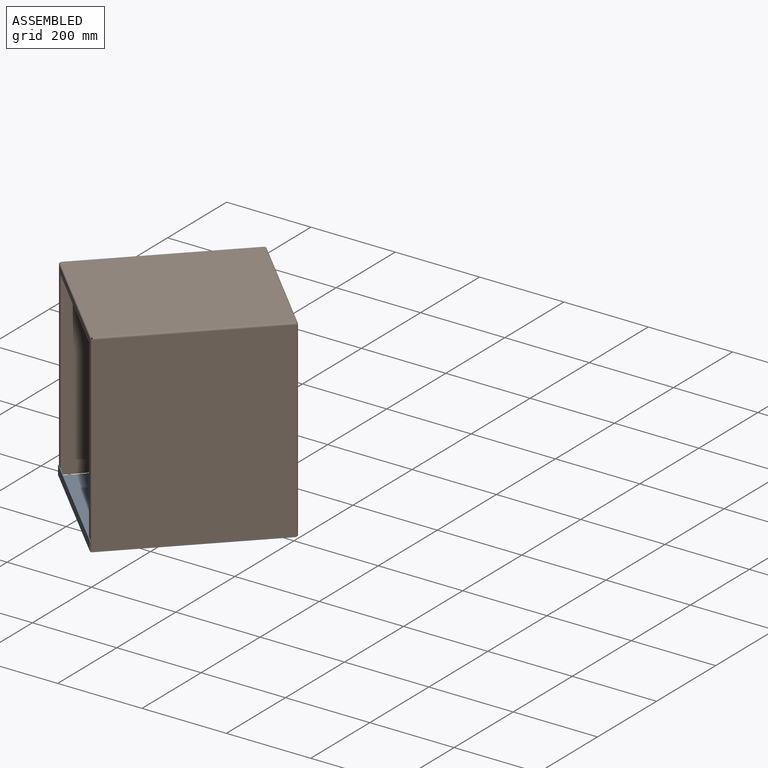
[diagram: assembled view]
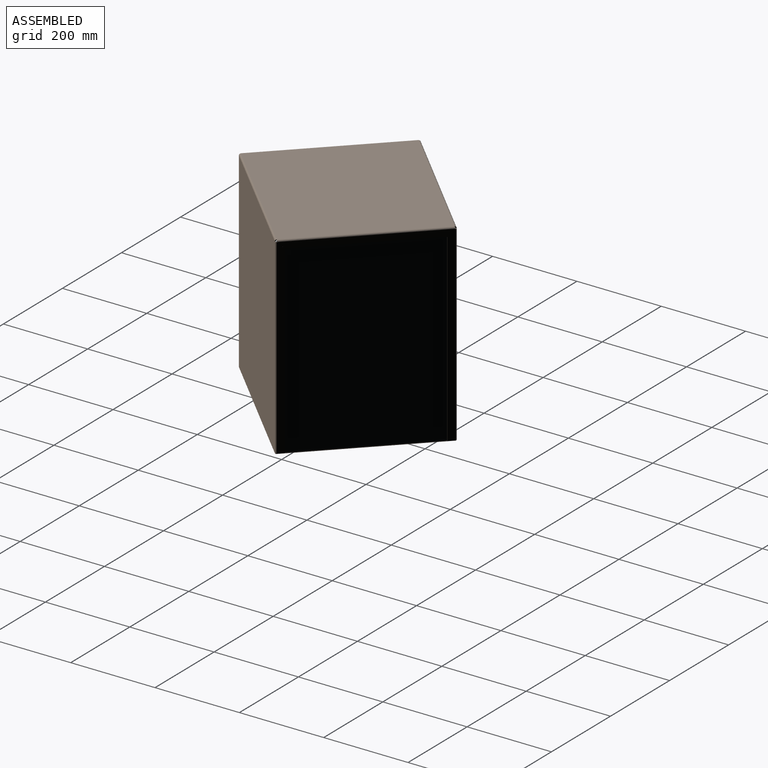
[diagram: assembled view, second angle]
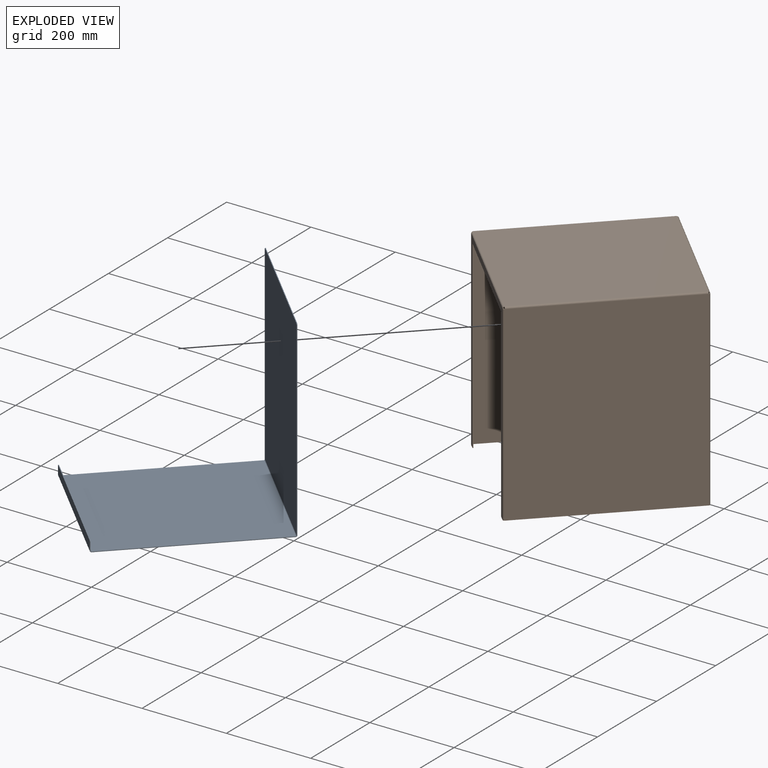
[diagram: exploded view]
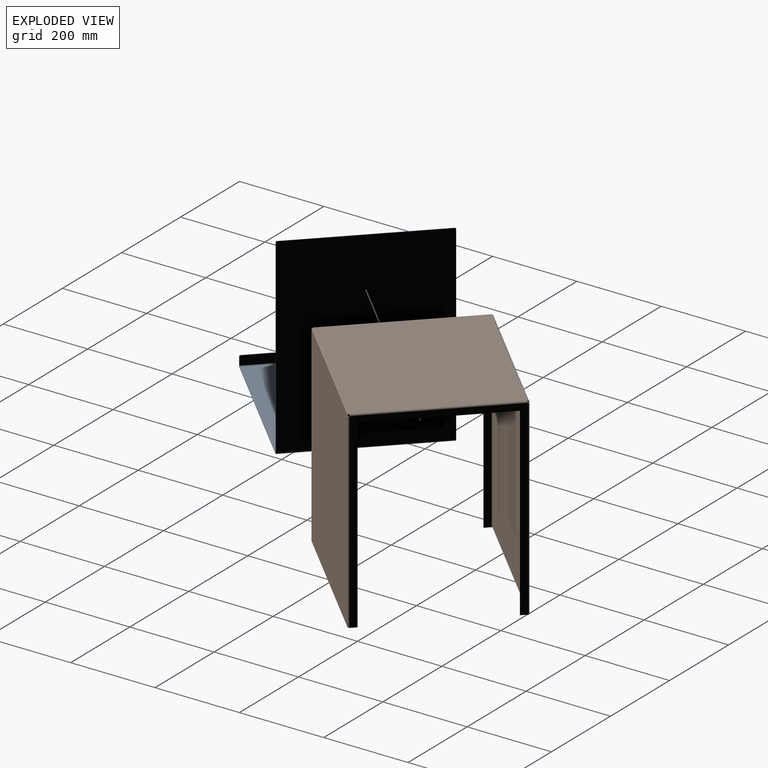
[diagram: exploded view, second angle]
ASSEMBLY  parts=2 mates=2
PART A: 26 faces, bbox 355.6x409.6x457.2 mm
  f0: plane 401.83x1.59mm, normal (1,0,0), area 637.9mm2, adj f2,f3,f12,f23
  f1: plane 401.83x1.59mm, normal (-1,0,0), area 637.9mm2, adj f2,f3,f11,f22
  f2: plane 401.83x355.6mm, normal (0,0,-1), area 142890mm2, adj f0,f1,f13,f24
  f3: plane 401.83x355.6mm, normal (0,0,1), area 142890mm2, adj f0,f1,f14,f25
  f4: plane 350.52x1.59mm, normal (0,0,1), area 556.5mm2, adj f7,f8,f9,f10
  f5: plane 450.79x1.59mm, normal (1,0,0), area 715.6mm2, adj f7,f8,f10,f12
  f6: plane 450.79x1.59mm, normal (-1,0,0), area 715.6mm2, adj f7,f8,f9,f11
  f7: plane 453.33x355.6mm, normal (0,1,0), area 161200.1mm2, adj f4,f5,f6,f9,f10,f13
  f8: plane 453.33x355.6mm, normal (0,-1,0), area 161200.1mm2, adj f4,f5,f6,f9,f10,f14
  f9: cylinder r=2.54mm len=2.54mm, axis (0,1,0), area 6.3mm2, adj f4,f6,f7,f8
  f10: cylinder r=2.54mm len=2.54mm, axis (0,1,0), area 6.3mm2, adj f4,f5,f7,f8
  f11: plane 3.87x3.87mm, normal (-1,0,0), area 7.7mm2, adj f1,f6,f13,f14
  f12: plane 3.87x3.87mm, normal (1,0,0), area 7.7mm2, adj f0,f5,f13,f14
  f13: cylinder r=3.87mm len=355.6mm, axis (-1,0,0), area 2163.6mm2, adj f2,f7,f11,f12
  f14: cylinder r=2.29mm len=355.6mm, axis (-1,0,0), area 1276.9mm2, adj f3,f8,f11,f12
  f15: plane 350.52x1.59mm, normal (0,0,1), area 556.5mm2, adj f18,f19,f20,f21
  f16: plane 18.99x1.59mm, normal (-1,0,0), area 30.1mm2, adj f18,f19,f20,f22
  f17: plane 18.99x1.59mm, normal (1,0,0), area 30.1mm2, adj f18,f19,f21,f23
  f18: plane 355.6x21.53mm, normal (0,-1,0), area 7652.1mm2, adj f15,f16,f17,f20,f21,f24
  f19: plane 355.6x21.53mm, normal (0,1,0), area 7652.1mm2, adj f15,f16,f17,f20,f21,f25
  f20: cylinder r=2.54mm len=2.54mm, axis (0,-1,0), area 6.3mm2, adj f15,f16,f18,f19
  f21: cylinder r=2.54mm len=2.54mm, axis (0,-1,0), area 6.3mm2, adj f15,f17,f18,f19
  f22: plane 3.87x3.87mm, normal (-1,0,0), area 7.7mm2, adj f1,f16,f24,f25
  f23: plane 3.87x3.87mm, normal (1,0,0), area 7.7mm2, adj f0,f17,f24,f25
  f24: cylinder r=3.87mm len=355.6mm, axis (-1,0,0), area 2163.6mm2, adj f2,f18,f22,f23
  f25: cylinder r=2.29mm len=355.6mm, axis (-1,0,0), area 1276.9mm2, adj f3,f19,f22,f23
PART B: 78 faces, bbox 358.8x409.6x457.2 mm
  f0: plane 1.59x0.02mm, normal (0,1,0), area 0mm2, adj f28,f29,f31,f65
  f1: plane 1.59x0.02mm, normal (0,-1,0), area 0mm2, adj f36,f37,f38,f47
  f2: plane 320.64x1.59mm, normal (0,0,1), area 509mm2, adj f3,f4,f5,f6
  f3: plane 15.18x15.18mm, normal (0.71,0,0.71), area 34.1mm2, adj f2,f5,f6,f7
  f4: plane 15.18x15.18mm, normal (-0.71,0,0.71), area 34.1mm2, adj f2,f5,f6,f8
  f5: plane 350.99x15.18mm, normal (0,1,0), area 5096.5mm2, adj f2,f3,f4,f9
  f6: plane 350.99x15.18mm, normal (0,-1,0), area 5096.5mm2, adj f2,f3,f4,f10
  f7: plane 3.87x3.87mm, normal (1,0,0), area 7.7mm2, adj f3,f9,f10,f14
  f8: plane 3.87x3.87mm, normal (-1,0,0), area 7.7mm2, adj f4,f9,f10,f12
  f9: cylinder r=3.87mm len=350.99mm, axis (1,0,0), area 2135.6mm2, adj f5,f7,f8,f15
  f10: cylinder r=2.29mm len=350.99mm, axis (1,0,0), area 1260.4mm2, adj f6,f7,f8,f16
  f11: plane 1.59x0.02mm, normal (0,-1,0), area 0mm2, adj f15,f16,f22,f30
  f12: plane 1.59x0.02mm, normal (0,1,0), area 0mm2, adj f8,f15,f16,f39
  f13: plane 1.59x0.02mm, normal (0,-1,0), area 0mm2, adj f15,f16,f23,f38
  f14: plane 1.59x0.02mm, normal (0,1,0), area 0mm2, adj f7,f15,f16,f31
  f15: plane 401.83x351.03mm, normal (0,0,-1), area 141052.9mm2, adj f9,f11,f12,f13,f14,f24,f32,f40
  f16: plane 401.83x351.03mm, normal (0,0,1), area 141052.9mm2, adj f10,f11,f12,f13,f14,f25,f33,f41
  f17: plane 320.64x1.59mm, normal (0,0,1), area 509mm2, adj f18,f19,f20,f21
  f18: plane 15.18x15.18mm, normal (-0.71,0,0.71), area 34.1mm2, adj f17,f20,f21,f23
  f19: plane 15.18x15.18mm, normal (0.71,0,0.71), area 34.1mm2, adj f17,f20,f21,f22
  f20: plane 350.99x15.18mm, normal (0,-1,0), area 5096.5mm2, adj f17,f18,f19,f24
  f21: plane 350.99x15.18mm, normal (0,1,0), area 5096.5mm2, adj f17,f18,f19,f25
  f22: plane 3.87x3.87mm, normal (1,0,0), area 7.7mm2, adj f11,f19,f24,f25
  f23: plane 3.87x3.87mm, normal (-1,0,0), area 7.7mm2, adj f13,f18,f24,f25
  f24: cylinder r=3.87mm len=350.99mm, axis (1,0,0), area 2135.6mm2, adj f15,f20,f22,f23
  f25: cylinder r=2.29mm len=350.99mm, axis (1,0,0), area 1260.4mm2, adj f16,f21,f22,f23
  f26: plane 401.83x1.59mm, normal (0,0,1), area 637.9mm2, adj f28,f29,f66,f74
  f27: plane 1.59x0.02mm, normal (0,-1,0), area 0mm2, adj f28,f29,f30,f75
  f28: plane 453.33x401.83mm, normal (1,0,0), area 182159.3mm2, adj f0,f26,f27,f32,f67,f76
  f29: plane 453.33x401.83mm, normal (-1,0,0), area 182159.3mm2, adj f0,f26,f27,f33,f68,f77
  f30: plane 3.87x3.87mm, normal (0,-1,0), area 7.7mm2, adj f11,f27,f32,f33
  f31: plane 3.87x3.87mm, normal (0,1,0), area 7.7mm2, adj f0,f14,f32,f33
  f32: cylinder r=3.87mm len=401.83mm, axis (0,-1,0), area 2444.9mm2, adj f15,f28,f30,f31
  f33: cylinder r=2.29mm len=401.83mm, axis (0,-1,0), area 1442.9mm2, adj f16,f29,f30,f31
  f34: plane 401.83x1.59mm, normal (0,0,1), area 637.9mm2, adj f36,f37,f48,f56
  f35: plane 1.59x0.02mm, normal (0,1,0), area 0mm2, adj f36,f37,f39,f57
  f36: plane 453.33x401.83mm, normal (-1,0,0), area 182159.3mm2, adj f1,f34,f35,f40,f49,f58
  f37: plane 453.33x401.83mm, normal (1,0,0), area 182159.3mm2, adj f1,f34,f35,f41,f50,f59
  f38: plane 3.87x3.87mm, normal (0,-1,0), area 7.7mm2, adj f1,f13,f40,f41
  f39: plane 3.87x3.87mm, normal (0,1,0), area 7.7mm2, adj f12,f35,f40,f41
  f40: cylinder r=3.87mm len=401.83mm, axis (0,-1,0), area 2444.9mm2, adj f15,f36,f38,f39
  f41: cylinder r=2.29mm len=401.83mm, axis (0,-1,0), area 1442.9mm2, adj f16,f37,f38,f39
  f42: plane 438.13x1.59mm, normal (1,0,0), area 695.5mm2, adj f43,f44,f45,f46
  f43: plane 15.18x1.59mm, normal (0,0,1), area 24.1mm2, adj f42,f45,f46,f48
  f44: plane 15.18x15.18mm, normal (0.71,0,-0.71), area 34.1mm2, adj f42,f45,f46,f47
  f45: plane 453.31x15.18mm, normal (0,-1,0), area 6764.5mm2, adj f42,f43,f44,f49
  f46: plane 453.31x15.18mm, normal (0,1,0), area 6764.5mm2, adj f42,f43,f44,f50
  f47: plane 3.87x3.87mm, normal (0,0,-1), area 7.7mm2, adj f1,f44,f49,f50
  f48: plane 3.87x3.87mm, normal (0,0,1), area 7.7mm2, adj f34,f43,f49,f50
  f49: cylinder r=3.87mm len=453.31mm, axis (0,0,-1), area 2758.1mm2, adj f36,f45,f47,f48
  f50: cylinder r=2.29mm len=453.31mm, axis (0,0,-1), area 1627.8mm2, adj f37,f46,f47,f48
  f51: plane 438.13x1.59mm, normal (1,0,0), area 695.5mm2, adj f52,f53,f54,f55
  f52: plane 15.18x15.18mm, normal (0.71,0,-0.71), area 34.1mm2, adj f51,f54,f55,f57
  f53: plane 15.18x1.59mm, normal (0,0,1), area 24.1mm2, adj f51,f54,f55,f56
  f54: plane 453.31x15.18mm, normal (0,1,0), area 6764.5mm2, adj f51,f52,f53,f58
  f55: plane 453.31x15.18mm, normal (0,-1,0), area 6764.5mm2, adj f51,f52,f53,f59
  f56: plane 3.87x3.87mm, normal (0,0,1), area 7.7mm2, adj f34,f53,f58,f59
  f57: plane 3.87x3.87mm, normal (0,0,-1), area 7.7mm2, adj f35,f52,f58,f59
  f58: cylinder r=3.87mm len=453.31mm, axis (0,0,1), area 2758.1mm2, adj f36,f54,f56,f57
  f59: cylinder r=2.29mm len=453.31mm, axis (0,0,1), area 1627.8mm2, adj f37,f55,f56,f57
  f60: plane 438.13x1.59mm, normal (-1,0,0), area 695.5mm2, adj f61,f62,f63,f64
  f61: plane 15.18x1.59mm, normal (0,0,1), area 24.1mm2, adj f60,f63,f64,f66
  f62: plane 15.18x15.18mm, normal (-0.71,0,-0.71), area 34.1mm2, adj f60,f63,f64,f65
  f63: plane 453.31x15.18mm, normal (0,1,0), area 6764.5mm2, adj f60,f61,f62,f67
  f64: plane 453.31x15.18mm, normal (0,-1,0), area 6764.5mm2, adj f60,f61,f62,f68
  f65: plane 3.87x3.87mm, normal (0,0,-1), area 7.7mm2, adj f0,f62,f67,f68
  f66: plane 3.87x3.87mm, normal (0,0,1), area 7.7mm2, adj f26,f61,f67,f68
  f67: cylinder r=3.87mm len=453.31mm, axis (0,0,-1), area 2758.1mm2, adj f28,f63,f65,f66
  f68: cylinder r=2.29mm len=453.31mm, axis (0,0,-1), area 1627.8mm2, adj f29,f64,f65,f66
  f69: plane 438.13x1.59mm, normal (-1,0,0), area 695.5mm2, adj f70,f71,f72,f73
  f70: plane 15.18x15.18mm, normal (-0.71,0,-0.71), area 34.1mm2, adj f69,f72,f73,f75
  f71: plane 15.18x1.59mm, normal (0,0,1), area 24.1mm2, adj f69,f72,f73,f74
  f72: plane 453.31x15.18mm, normal (0,-1,0), area 6764.5mm2, adj f69,f70,f71,f76
  f73: plane 453.31x15.18mm, normal (0,1,0), area 6764.5mm2, adj f69,f70,f71,f77
  f74: plane 3.87x3.87mm, normal (0,0,1), area 7.7mm2, adj f26,f71,f76,f77
  f75: plane 3.87x3.87mm, normal (0,0,-1), area 7.7mm2, adj f27,f70,f76,f77
  f76: cylinder r=3.87mm len=453.31mm, axis (0,0,1), area 2758.1mm2, adj f28,f72,f74,f75
  f77: cylinder r=2.29mm len=453.31mm, axis (0,0,1), area 1627.8mm2, adj f29,f73,f74,f75
PLACE A rot(axis=(0,0,-1),45deg) t=(-658.5,-224.43,-625.52)mm
PLACE B rot(axis=(-0.38,-0.92,0),180deg) t=(-657.37,-223.31,-165.7)mm
MATE planar A.f7 <-> B.f55  axis (0.71,0.71,0) through (-513.69,-79.63,-394.98)mm
MATE planar B.f29 <-> A.f6  axis (0.71,-0.71,0) through (-925.16,-239.65,-396.25)mm
